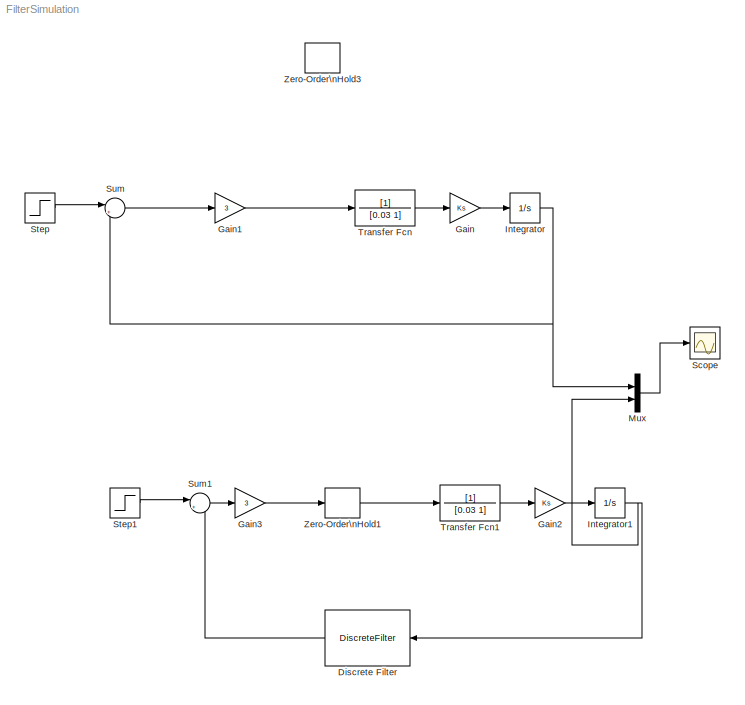
MODEL FilterSimulation
KIND model
BLOCK [DiscreteFilter] Discrete Filter
  Denominator = [1 0.9595 0.7785 0.2358 0.03691]
  FilterStructure = Direct form II transposed
  InputPortMap = u0
  InputProcessing = Columns as channels (frame based)
  Numerator = [0.1882 0.7527 1.129 0.7527 0.1882]
  Ports = [1, 1]
  SID = 34
  SampleTime = 0.015
  a0EqualsOne = on
BLOCK [Gain] Gain
  Gain = Ks
  OutDataTypeStr = Inherit: Inherit via internal rule
  ParamDataTypeStr = Inherit: Inherit via internal rule
  SID = 3
  SaturateOnIntegerOverflow = off
BLOCK [Gain] Gain1
  Gain = 3
  OutDataTypeStr = Inherit: Inherit via internal rule
  ParamDataTypeStr = Inherit: Inherit via internal rule
  SID = 20
  SaturateOnIntegerOverflow = off
BLOCK [Gain] Gain2
  Gain = Ks
  OutDataTypeStr = Inherit: Inherit via internal rule
  ParamDataTypeStr = Inherit: Inherit via internal rule
  SID = 26
  SaturateOnIntegerOverflow = off
BLOCK [Gain] Gain3
  Gain = 3
  OutDataTypeStr = Inherit: Inherit via internal rule
  ParamDataTypeStr = Inherit: Inherit via internal rule
  SID = 27
  SaturateOnIntegerOverflow = off
BLOCK [Integrator] Integrator
  Ports = [1, 1]
  SID = 2
BLOCK [Integrator] Integrator1
  Ports = [1, 1]
  SID = 28
BLOCK [Mux] Mux
  DisplayOption = bar
  Inputs = 2
  Ports = [2, 1]
  SID = 35
BLOCK [Scope] Scope
  Floating = off
  NumInputPorts = 1
  Ports = [1]
  SID = 5
  SampleTime = 0
  SaveToWorkspace = on
BLOCK [Step] Step
  After = 1670
  Before = 1360
  SID = 6
  SampleTime = 0
  Time = 5
BLOCK [Step] Step1
  After = 1670
  Before = 1360
  SID = 30
  SampleTime = 0
  Time = 5
BLOCK [Sum] Sum
  IconShape = round
  InputSameDT = off
  Inputs = |+-
  OutDataTypeStr = Inherit: Inherit via internal rule
  Ports = [2, 1]
  SID = 1
  SaturateOnIntegerOverflow = off
BLOCK [Sum] Sum1
  IconShape = round
  InputSameDT = off
  Inputs = |+-
  OutDataTypeStr = Inherit: Inherit via internal rule
  Ports = [2, 1]
  SID = 31
  SaturateOnIntegerOverflow = off
BLOCK [TransferFcn] Transfer Fcn
  Denominator = [0.03 1]
  SID = 22
BLOCK [TransferFcn] Transfer Fcn1
  Denominator = [0.03 1]
  SID = 32
BLOCK [ZeroOrderHold] Zero-Order\nHold1
  SID = 33
  SampleTime = 0.015
BLOCK [ZeroOrderHold] Zero-Order\nHold3
  SID = 37
  SampleTime = 0.015
LINE Discrete Filter:1 -> Sum1:2
LINE Gain1:1 -> Transfer Fcn:1
LINE Gain2:1 -> Integrator1:1
LINE Gain3:1 -> Zero-Order\nHold1:1
LINE Gain:1 -> Integrator:1
NET Integrator1:1 -> Discrete Filter:1, Mux:2
NET Integrator:1 -> Mux:1, Sum:2
LINE Mux:1 -> Scope:1
LINE Step1:1 -> Sum1:1
LINE Step:1 -> Sum:1
LINE Sum1:1 -> Gain3:1
LINE Sum:1 -> Gain1:1
LINE Transfer Fcn1:1 -> Gain2:1
LINE Transfer Fcn:1 -> Gain:1
LINE Zero-Order\nHold1:1 -> Transfer Fcn1:1
note: NET lines group one-source signal fan-out (src -> all destinations, sorted); 1:1 wires keep LINE
